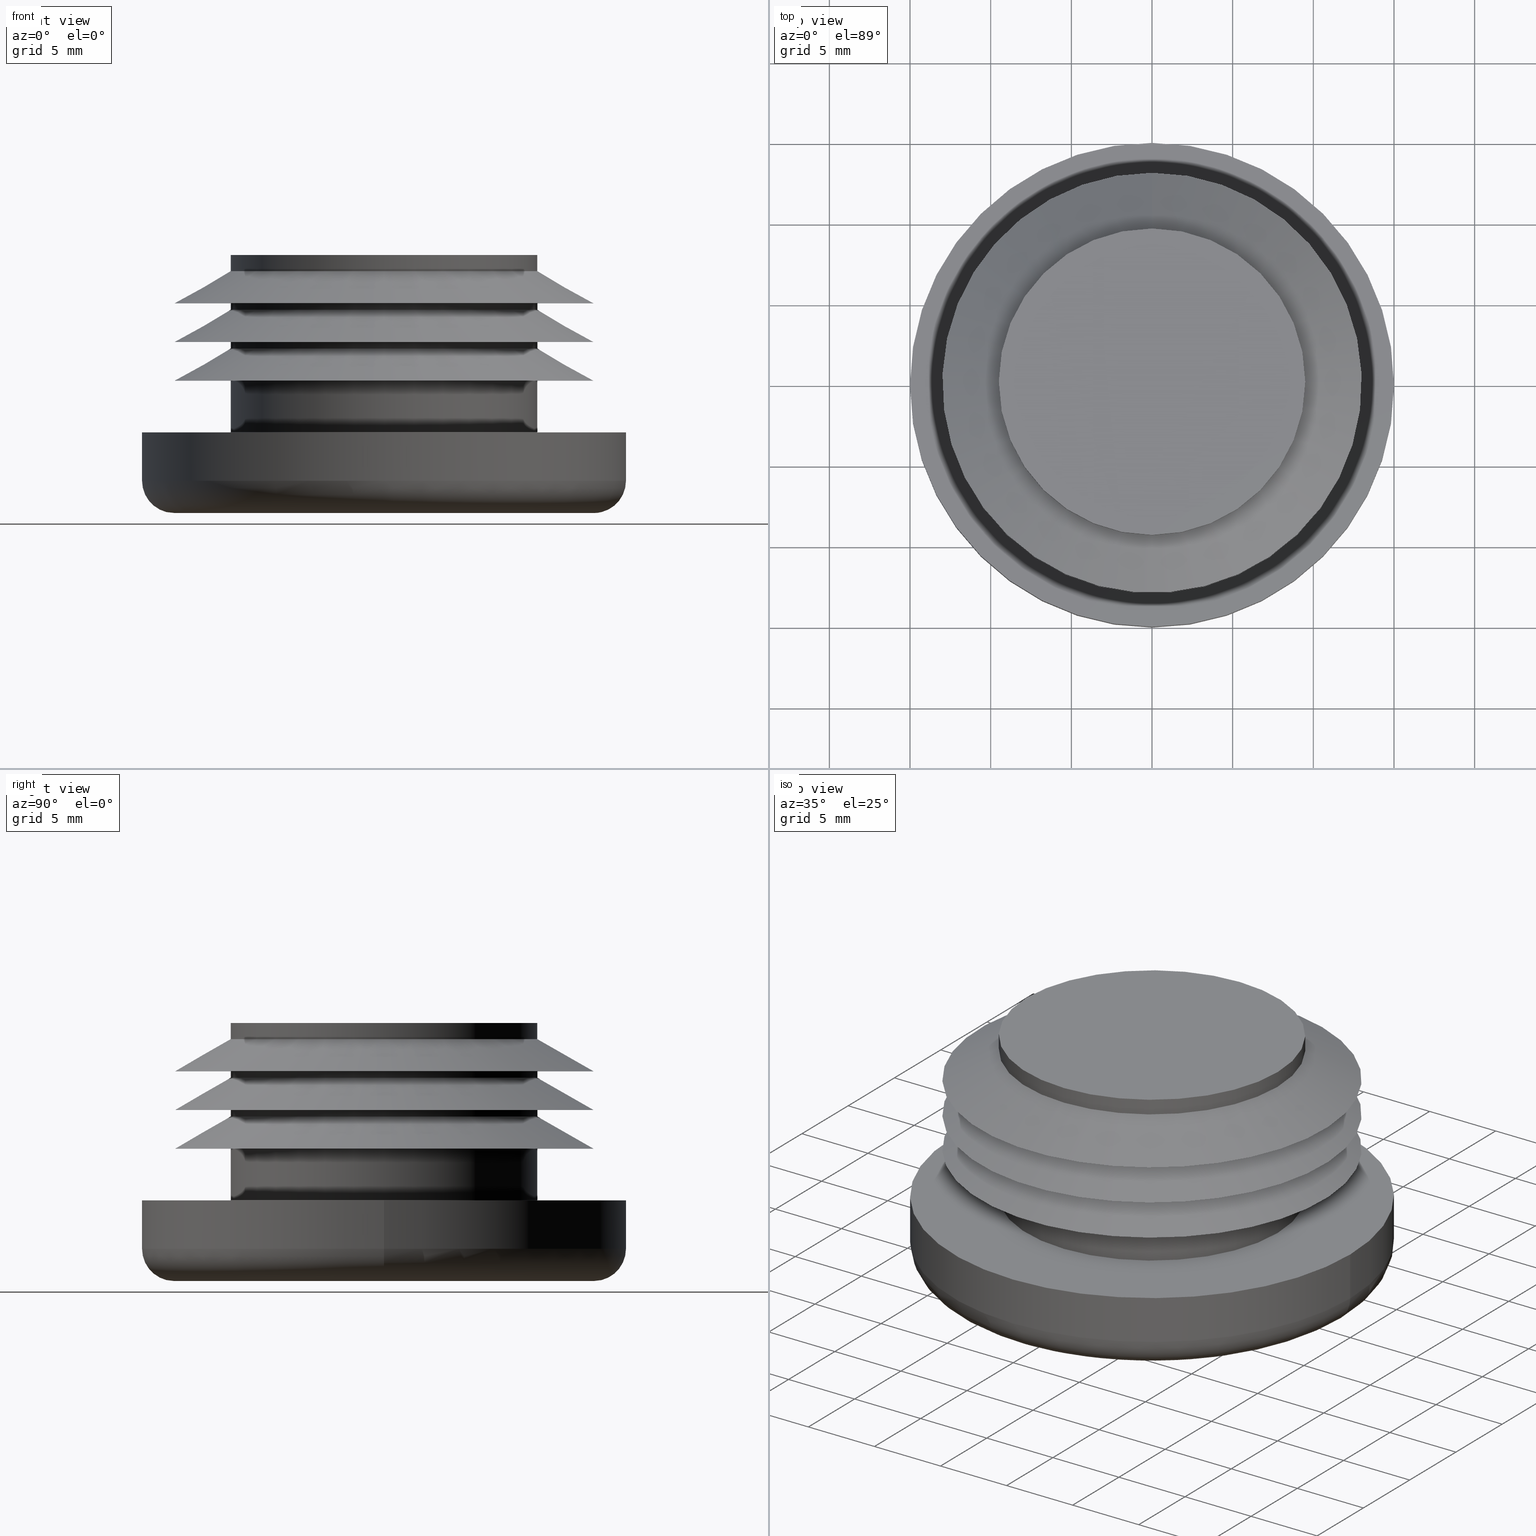
[diagram: canonical four-view strip — front | top / right | iso, engineering-drawing reading convention]
A machine part, canonical four-view strip (front | top / right | iso — engineering-drawing reading convention). The complete STEP part file that produces these views, byte-faithful:
ISO-10303-21;
HEADER;
/* Generated by software containing ST-Developer
 * from STEP Tools, Inc. (www.steptools.com) 
 */

FILE_DESCRIPTION(
/* description */ ('TAPPO PER MANIGLIA DIAM 30 NERO'),
/* implementation_level */ '2;1');

FILE_NAME(
/* name */ 
'Q:\\Catalogo\\2_Accessori Dierre\\Per Download Web\\CATALOGO ACCESSOR
I PER RIPARI\\PAGINA 64\\CTPTU0000004.stp',
/* time_stamp */ '2018-01-31T14:28:10+01:00',
/* author */ ('fzagni'),
/* organization */ (''),
/* preprocessor_version */ 'ST-DEVELOPER v16.1',
/* originating_system */ 'Autodesk Inventor 2016',
/* authorisation */ '');

FILE_SCHEMA (('AUTOMOTIVE_DESIGN { 1 0 10303 214 3 1 1 }'));
ENDSEC;

DATA;
#10=MECHANICAL_DESIGN_GEOMETRIC_PRESENTATION_REPRESENTATION('',(#13),#309);
#11=SHAPE_REPRESENTATION_RELATIONSHIP('SRR','None',#318,#12);
#12=ADVANCED_BREP_SHAPE_REPRESENTATION('',(#14),#308);
#13=STYLED_ITEM('',(#327),#14);
#14=MANIFOLD_SOLID_BREP('Solido1',#171);
#15=CONICAL_SURFACE('',#182,11.25,60.2551187030578);
#16=CONICAL_SURFACE('',#187,11.25,60.2551187030578);
#17=CONICAL_SURFACE('',#194,11.25,60.2551187030578);
#18=CYLINDRICAL_SURFACE('',#177,15.);
#19=CYLINDRICAL_SURFACE('',#189,9.5);
#20=CYLINDRICAL_SURFACE('',#191,9.5);
#21=CYLINDRICAL_SURFACE('',#196,9.5);
#22=CYLINDRICAL_SURFACE('',#199,9.5);
#23=PLANE('',#176);
#24=PLANE('',#179);
#25=PLANE('',#184);
#26=PLANE('',#192);
#27=PLANE('',#198);
#28=PLANE('',#201);
#29=FACE_BOUND('',#58,.T.);
#30=FACE_BOUND('',#61,.T.);
#31=FACE_BOUND('',#63,.T.);
#32=FACE_BOUND('',#65,.T.);
#33=FACE_BOUND('',#67,.T.);
#34=FACE_BOUND('',#69,.T.);
#35=FACE_BOUND('',#71,.T.);
#36=FACE_BOUND('',#73,.T.);
#37=FACE_BOUND('',#75,.T.);
#38=FACE_BOUND('',#77,.T.);
#39=FACE_BOUND('',#79,.T.);
#40=FACE_BOUND('',#82,.T.);
#41=FACE_BOUND('',#84,.T.);
#42=FACE_OUTER_BOUND('',#57,.T.);
#43=FACE_OUTER_BOUND('',#59,.T.);
#44=FACE_OUTER_BOUND('',#60,.T.);
#45=FACE_OUTER_BOUND('',#62,.T.);
#46=FACE_OUTER_BOUND('',#64,.T.);
#47=FACE_OUTER_BOUND('',#66,.T.);
#48=FACE_OUTER_BOUND('',#68,.T.);
#49=FACE_OUTER_BOUND('',#70,.T.);
#50=FACE_OUTER_BOUND('',#72,.T.);
#51=FACE_OUTER_BOUND('',#74,.T.);
#52=FACE_OUTER_BOUND('',#76,.T.);
#53=FACE_OUTER_BOUND('',#78,.T.);
#54=FACE_OUTER_BOUND('',#80,.T.);
#55=FACE_OUTER_BOUND('',#81,.T.);
#56=FACE_OUTER_BOUND('',#83,.T.);
#57=EDGE_LOOP('',(#127));
#58=EDGE_LOOP('',(#128));
#59=EDGE_LOOP('',(#129));
#60=EDGE_LOOP('',(#130));
#61=EDGE_LOOP('',(#131));
#62=EDGE_LOOP('',(#132));
#63=EDGE_LOOP('',(#133));
#64=EDGE_LOOP('',(#134));
#65=EDGE_LOOP('',(#135));
#66=EDGE_LOOP('',(#136));
#67=EDGE_LOOP('',(#137));
#68=EDGE_LOOP('',(#138));
#69=EDGE_LOOP('',(#139));
#70=EDGE_LOOP('',(#140));
#71=EDGE_LOOP('',(#141));
#72=EDGE_LOOP('',(#142));
#73=EDGE_LOOP('',(#143));
#74=EDGE_LOOP('',(#144));
#75=EDGE_LOOP('',(#145));
#76=EDGE_LOOP('',(#146));
#77=EDGE_LOOP('',(#147));
#78=EDGE_LOOP('',(#148));
#79=EDGE_LOOP('',(#149));
#80=EDGE_LOOP('',(#150));
#81=EDGE_LOOP('',(#151));
#82=EDGE_LOOP('',(#152));
#83=EDGE_LOOP('',(#153));
#84=EDGE_LOOP('',(#154));
#85=CIRCLE('',#174,15.);
#86=CIRCLE('',#175,13.);
#87=CIRCLE('',#178,15.);
#88=CIRCLE('',#180,13.);
#89=CIRCLE('',#181,9.5);
#90=CIRCLE('',#183,9.5);
#91=CIRCLE('',#185,13.);
#92=CIRCLE('',#186,9.5);
#93=CIRCLE('',#188,9.5);
#94=CIRCLE('',#190,9.5);
#95=CIRCLE('',#193,13.);
#96=CIRCLE('',#195,9.5);
#97=CIRCLE('',#197,9.5);
#98=CIRCLE('',#200,9.5);
#99=VERTEX_POINT('',#264);
#100=VERTEX_POINT('',#266);
#101=VERTEX_POINT('',#270);
#102=VERTEX_POINT('',#273);
#103=VERTEX_POINT('',#275);
#104=VERTEX_POINT('',#278);
#105=VERTEX_POINT('',#281);
#106=VERTEX_POINT('',#283);
#107=VERTEX_POINT('',#286);
#108=VERTEX_POINT('',#289);
#109=VERTEX_POINT('',#293);
#110=VERTEX_POINT('',#296);
#111=VERTEX_POINT('',#299);
#112=VERTEX_POINT('',#303);
#113=EDGE_CURVE('',#99,#99,#85,.T.);
#114=EDGE_CURVE('',#100,#100,#86,.T.);
#115=EDGE_CURVE('',#101,#101,#87,.T.);
#116=EDGE_CURVE('',#102,#102,#88,.T.);
#117=EDGE_CURVE('',#103,#103,#89,.T.);
#118=EDGE_CURVE('',#104,#104,#90,.T.);
#119=EDGE_CURVE('',#105,#105,#91,.T.);
#120=EDGE_CURVE('',#106,#106,#92,.T.);
#121=EDGE_CURVE('',#107,#107,#93,.T.);
#122=EDGE_CURVE('',#108,#108,#94,.T.);
#123=EDGE_CURVE('',#109,#109,#95,.T.);
#124=EDGE_CURVE('',#110,#110,#96,.T.);
#125=EDGE_CURVE('',#111,#111,#97,.T.);
#126=EDGE_CURVE('',#112,#112,#98,.T.);
#127=ORIENTED_EDGE('',*,*,#113,.T.);
#128=ORIENTED_EDGE('',*,*,#114,.T.);
#129=ORIENTED_EDGE('',*,*,#114,.F.);
#130=ORIENTED_EDGE('',*,*,#115,.F.);
#131=ORIENTED_EDGE('',*,*,#113,.F.);
#132=ORIENTED_EDGE('',*,*,#116,.T.);
#133=ORIENTED_EDGE('',*,*,#117,.F.);
#134=ORIENTED_EDGE('',*,*,#116,.F.);
#135=ORIENTED_EDGE('',*,*,#118,.F.);
#136=ORIENTED_EDGE('',*,*,#119,.T.);
#137=ORIENTED_EDGE('',*,*,#120,.F.);
#138=ORIENTED_EDGE('',*,*,#119,.F.);
#139=ORIENTED_EDGE('',*,*,#121,.F.);
#140=ORIENTED_EDGE('',*,*,#121,.T.);
#141=ORIENTED_EDGE('',*,*,#122,.T.);
#142=ORIENTED_EDGE('',*,*,#120,.T.);
#143=ORIENTED_EDGE('',*,*,#118,.T.);
#144=ORIENTED_EDGE('',*,*,#123,.T.);
#145=ORIENTED_EDGE('',*,*,#122,.F.);
#146=ORIENTED_EDGE('',*,*,#123,.F.);
#147=ORIENTED_EDGE('',*,*,#124,.F.);
#148=ORIENTED_EDGE('',*,*,#125,.T.);
#149=ORIENTED_EDGE('',*,*,#124,.T.);
#150=ORIENTED_EDGE('',*,*,#125,.F.);
#151=ORIENTED_EDGE('',*,*,#117,.T.);
#152=ORIENTED_EDGE('',*,*,#126,.F.);
#153=ORIENTED_EDGE('',*,*,#115,.T.);
#154=ORIENTED_EDGE('',*,*,#126,.T.);
#155=TOROIDAL_SURFACE('',#173,13.,2.);
#156=ADVANCED_FACE('',(#42,#29),#155,.T.);
#157=ADVANCED_FACE('',(#43),#23,.F.);
#158=ADVANCED_FACE('',(#44,#30),#18,.T.);
#159=ADVANCED_FACE('',(#45,#31),#24,.T.);
#160=ADVANCED_FACE('',(#46,#32),#15,.T.);
#161=ADVANCED_FACE('',(#47,#33),#25,.T.);
#162=ADVANCED_FACE('',(#48,#34),#16,.T.);
#163=ADVANCED_FACE('',(#49,#35),#19,.T.);
#164=ADVANCED_FACE('',(#50,#36),#20,.T.);
#165=ADVANCED_FACE('',(#51,#37),#26,.T.);
#166=ADVANCED_FACE('',(#52,#38),#17,.T.);
#167=ADVANCED_FACE('',(#53,#39),#21,.T.);
#168=ADVANCED_FACE('',(#54),#27,.T.);
#169=ADVANCED_FACE('',(#55,#40),#22,.T.);
#170=ADVANCED_FACE('',(#56,#41),#28,.T.);
#171=CLOSED_SHELL('',(#156,#157,#158,#159,#160,#161,#162,#163,#164,#165,
#166,#167,#168,#169,#170));
#172=AXIS2_PLACEMENT_3D('placement',#262,#202,#203);
#173=AXIS2_PLACEMENT_3D('',#263,#204,#205);
#174=AXIS2_PLACEMENT_3D('',#265,#206,#207);
#175=AXIS2_PLACEMENT_3D('',#267,#208,#209);
#176=AXIS2_PLACEMENT_3D('',#268,#210,#211);
#177=AXIS2_PLACEMENT_3D('',#269,#212,#213);
#178=AXIS2_PLACEMENT_3D('',#271,#214,#215);
#179=AXIS2_PLACEMENT_3D('',#272,#216,#217);
#180=AXIS2_PLACEMENT_3D('',#274,#218,#219);
#181=AXIS2_PLACEMENT_3D('',#276,#220,#221);
#182=AXIS2_PLACEMENT_3D('',#277,#222,#223);
#183=AXIS2_PLACEMENT_3D('',#279,#224,#225);
#184=AXIS2_PLACEMENT_3D('',#280,#226,#227);
#185=AXIS2_PLACEMENT_3D('',#282,#228,#229);
#186=AXIS2_PLACEMENT_3D('',#284,#230,#231);
#187=AXIS2_PLACEMENT_3D('',#285,#232,#233);
#188=AXIS2_PLACEMENT_3D('',#287,#234,#235);
#189=AXIS2_PLACEMENT_3D('',#288,#236,#237);
#190=AXIS2_PLACEMENT_3D('',#290,#238,#239);
#191=AXIS2_PLACEMENT_3D('',#291,#240,#241);
#192=AXIS2_PLACEMENT_3D('',#292,#242,#243);
#193=AXIS2_PLACEMENT_3D('',#294,#244,#245);
#194=AXIS2_PLACEMENT_3D('',#295,#246,#247);
#195=AXIS2_PLACEMENT_3D('',#297,#248,#249);
#196=AXIS2_PLACEMENT_3D('',#298,#250,#251);
#197=AXIS2_PLACEMENT_3D('',#300,#252,#253);
#198=AXIS2_PLACEMENT_3D('',#301,#254,#255);
#199=AXIS2_PLACEMENT_3D('',#302,#256,#257);
#200=AXIS2_PLACEMENT_3D('',#304,#258,#259);
#201=AXIS2_PLACEMENT_3D('',#305,#260,#261);
#202=DIRECTION('axis',(0.,0.,1.));
#203=DIRECTION('refdir',(1.,0.,0.));
#204=DIRECTION('center_axis',(0.,0.,-1.));
#205=DIRECTION('ref_axis',(-1.,0.,0.));
#206=DIRECTION('center_axis',(0.,0.,-1.));
#207=DIRECTION('ref_axis',(-1.,0.,0.));
#208=DIRECTION('center_axis',(0.,0.,1.));
#209=DIRECTION('ref_axis',(-1.,0.,0.));
#210=DIRECTION('center_axis',(0.,0.,1.));
#211=DIRECTION('ref_axis',(1.,0.,0.));
#212=DIRECTION('center_axis',(0.,0.,1.));
#213=DIRECTION('ref_axis',(-1.,0.,0.));
#214=DIRECTION('center_axis',(0.,0.,1.));
#215=DIRECTION('ref_axis',(-1.,0.,0.));
#216=DIRECTION('center_axis',(0.,0.,-1.));
#217=DIRECTION('ref_axis',(-1.,0.,0.));
#218=DIRECTION('center_axis',(0.,0.,-1.));
#219=DIRECTION('ref_axis',(0.,1.,0.));
#220=DIRECTION('center_axis',(0.,0.,-1.));
#221=DIRECTION('ref_axis',(0.,1.,0.));
#222=DIRECTION('center_axis',(0.,0.,-1.));
#223=DIRECTION('ref_axis',(0.,1.,0.));
#224=DIRECTION('center_axis',(0.,0.,1.));
#225=DIRECTION('ref_axis',(0.,1.,0.));
#226=DIRECTION('center_axis',(0.,0.,-1.));
#227=DIRECTION('ref_axis',(-1.,0.,0.));
#228=DIRECTION('center_axis',(0.,0.,-1.));
#229=DIRECTION('ref_axis',(0.,1.,0.));
#230=DIRECTION('center_axis',(0.,0.,-1.));
#231=DIRECTION('ref_axis',(0.,1.,0.));
#232=DIRECTION('center_axis',(0.,0.,-1.));
#233=DIRECTION('ref_axis',(0.,1.,0.));
#234=DIRECTION('center_axis',(0.,0.,1.));
#235=DIRECTION('ref_axis',(0.,1.,0.));
#236=DIRECTION('center_axis',(0.,0.,-1.));
#237=DIRECTION('ref_axis',(0.,1.,0.));
#238=DIRECTION('center_axis',(0.,0.,-1.));
#239=DIRECTION('ref_axis',(0.,1.,0.));
#240=DIRECTION('center_axis',(0.,0.,-1.));
#241=DIRECTION('ref_axis',(0.,1.,0.));
#242=DIRECTION('center_axis',(0.,0.,-1.));
#243=DIRECTION('ref_axis',(-1.,0.,0.));
#244=DIRECTION('center_axis',(0.,0.,-1.));
#245=DIRECTION('ref_axis',(0.,1.,0.));
#246=DIRECTION('center_axis',(0.,0.,-1.));
#247=DIRECTION('ref_axis',(0.,1.,0.));
#248=DIRECTION('center_axis',(0.,0.,1.));
#249=DIRECTION('ref_axis',(0.,1.,0.));
#250=DIRECTION('center_axis',(0.,0.,-1.));
#251=DIRECTION('ref_axis',(0.,1.,0.));
#252=DIRECTION('center_axis',(0.,0.,-1.));
#253=DIRECTION('ref_axis',(0.,1.,0.));
#254=DIRECTION('center_axis',(0.,0.,1.));
#255=DIRECTION('ref_axis',(1.,0.,0.));
#256=DIRECTION('center_axis',(0.,0.,-1.));
#257=DIRECTION('ref_axis',(0.,1.,0.));
#258=DIRECTION('center_axis',(0.,0.,-1.));
#259=DIRECTION('ref_axis',(0.,1.,0.));
#260=DIRECTION('center_axis',(0.,0.,1.));
#261=DIRECTION('ref_axis',(1.,0.,0.));
#262=CARTESIAN_POINT('',(0.,0.,0.));
#263=CARTESIAN_POINT('Origin',(0.,0.,-0.5));
#264=CARTESIAN_POINT('',(15.,-1.83697019872103E-15,-0.5));
#265=CARTESIAN_POINT('Origin',(0.,0.,-0.5));
#266=CARTESIAN_POINT('',(13.,1.59204083889156E-15,-2.5));
#267=CARTESIAN_POINT('Origin',(0.,0.,-2.5));
#268=CARTESIAN_POINT('Origin',(-6.46513305282378E-16,2.46716227694479E-16,
-2.5));
#269=CARTESIAN_POINT('Origin',(0.,0.,0.));
#270=CARTESIAN_POINT('',(15.,1.83697019872103E-15,2.5));
#271=CARTESIAN_POINT('Origin',(0.,0.,2.5));
#272=CARTESIAN_POINT('Origin',(0.,11.25,5.7));
#273=CARTESIAN_POINT('',(0.,13.,5.7));
#274=CARTESIAN_POINT('Origin',(0.,0.,5.7));
#275=CARTESIAN_POINT('',(0.,9.5,5.7));
#276=CARTESIAN_POINT('Origin',(0.,0.,5.7));
#277=CARTESIAN_POINT('Origin',(0.,0.,6.7));
#278=CARTESIAN_POINT('',(0.,9.5,7.7));
#279=CARTESIAN_POINT('Origin',(0.,0.,7.7));
#280=CARTESIAN_POINT('Origin',(0.,11.25,8.1));
#281=CARTESIAN_POINT('',(0.,13.,8.1));
#282=CARTESIAN_POINT('Origin',(0.,0.,8.1));
#283=CARTESIAN_POINT('',(0.,9.5,8.1));
#284=CARTESIAN_POINT('Origin',(0.,0.,8.1));
#285=CARTESIAN_POINT('Origin',(0.,0.,9.1));
#286=CARTESIAN_POINT('',(0.,9.5,10.1));
#287=CARTESIAN_POINT('Origin',(0.,0.,10.1));
#288=CARTESIAN_POINT('Origin',(0.,0.,7.5));
#289=CARTESIAN_POINT('',(0.,9.5,10.5));
#290=CARTESIAN_POINT('Origin',(0.,0.,10.5));
#291=CARTESIAN_POINT('Origin',(0.,0.,7.5));
#292=CARTESIAN_POINT('Origin',(0.,11.25,10.5));
#293=CARTESIAN_POINT('',(0.,13.,10.5));
#294=CARTESIAN_POINT('Origin',(0.,0.,10.5));
#295=CARTESIAN_POINT('Origin',(0.,0.,11.5));
#296=CARTESIAN_POINT('',(0.,9.5,12.5));
#297=CARTESIAN_POINT('Origin',(0.,0.,12.5));
#298=CARTESIAN_POINT('Origin',(0.,0.,7.5));
#299=CARTESIAN_POINT('',(0.,9.5,13.5));
#300=CARTESIAN_POINT('Origin',(0.,0.,13.5));
#301=CARTESIAN_POINT('Origin',(0.,4.75,13.5));
#302=CARTESIAN_POINT('Origin',(0.,0.,7.5));
#303=CARTESIAN_POINT('',(0.,9.5,2.5));
#304=CARTESIAN_POINT('Origin',(0.,0.,2.5));
#305=CARTESIAN_POINT('Origin',(-6.46513305282378E-16,2.46716227694479E-16,
2.5));
#306=UNCERTAINTY_MEASURE_WITH_UNIT(LENGTH_MEASURE(0.01),#310,
'DISTANCE_ACCURACY_VALUE',
'Maximum model space distance between geometric entities at asserted c
onnectivities');
#307=UNCERTAINTY_MEASURE_WITH_UNIT(LENGTH_MEASURE(1.E-6),#310,
'DISTANCE_ACCURACY_VALUE',
'Maximum model space distance between geometric entities at asserted c
onnectivities');
#308=(
GEOMETRIC_REPRESENTATION_CONTEXT(3)
GLOBAL_UNCERTAINTY_ASSIGNED_CONTEXT((#306))
GLOBAL_UNIT_ASSIGNED_CONTEXT((#310,#313,#311))
REPRESENTATION_CONTEXT('','3D')
);
#309=(
GEOMETRIC_REPRESENTATION_CONTEXT(3)
GLOBAL_UNCERTAINTY_ASSIGNED_CONTEXT((#307))
GLOBAL_UNIT_ASSIGNED_CONTEXT((#310,#313,#311))
REPRESENTATION_CONTEXT('','3D')
);
#310=(
LENGTH_UNIT()
NAMED_UNIT(*)
SI_UNIT(.MILLI.,.METRE.)
);
#311=(
NAMED_UNIT(*)
SI_UNIT($,.STERADIAN.)
SOLID_ANGLE_UNIT()
);
#312=DIMENSIONAL_EXPONENTS(0.,0.,0.,0.,0.,0.,0.);
#313=(
CONVERSION_BASED_UNIT('degree',#315)
NAMED_UNIT(#312)
PLANE_ANGLE_UNIT()
);
#314=(
NAMED_UNIT(*)
PLANE_ANGLE_UNIT()
SI_UNIT($,.RADIAN.)
);
#315=PLANE_ANGLE_MEASURE_WITH_UNIT(PLANE_ANGLE_MEASURE(0.01745329252),#314);
#316=SHAPE_DEFINITION_REPRESENTATION(#317,#318);
#317=PRODUCT_DEFINITION_SHAPE('',$,#320);
#318=SHAPE_REPRESENTATION('',(#172),#308);
#319=PRODUCT_DEFINITION_CONTEXT('part definition',#324,'design');
#320=PRODUCT_DEFINITION('18.101.00','18.101.00',#321,#319);
#321=PRODUCT_DEFINITION_FORMATION('','A',#326);
#322=PRODUCT_RELATED_PRODUCT_CATEGORY('18.101.00','18.101.00',(#326));
#323=APPLICATION_PROTOCOL_DEFINITION('international standard',
'automotive_design',2009,#324);
#324=APPLICATION_CONTEXT(
'Core Data for Automotive Mechanical Design Process');
#325=PRODUCT_CONTEXT('part definition',#324,'mechanical');
#326=PRODUCT('18.101.00','18.101.00',$,(#325));
#327=PRESENTATION_STYLE_ASSIGNMENT((#328));
#328=SURFACE_STYLE_USAGE(.BOTH.,#329);
#329=SURFACE_SIDE_STYLE('',(#330));
#330=SURFACE_STYLE_FILL_AREA(#331);
#331=FILL_AREA_STYLE('',(#332));
#332=FILL_AREA_STYLE_COLOUR('',#333);
#333=COLOUR_RGB('',0.16078431372549,0.16078431372549,0.16078431372549);
ENDSEC;
END-ISO-10303-21;
